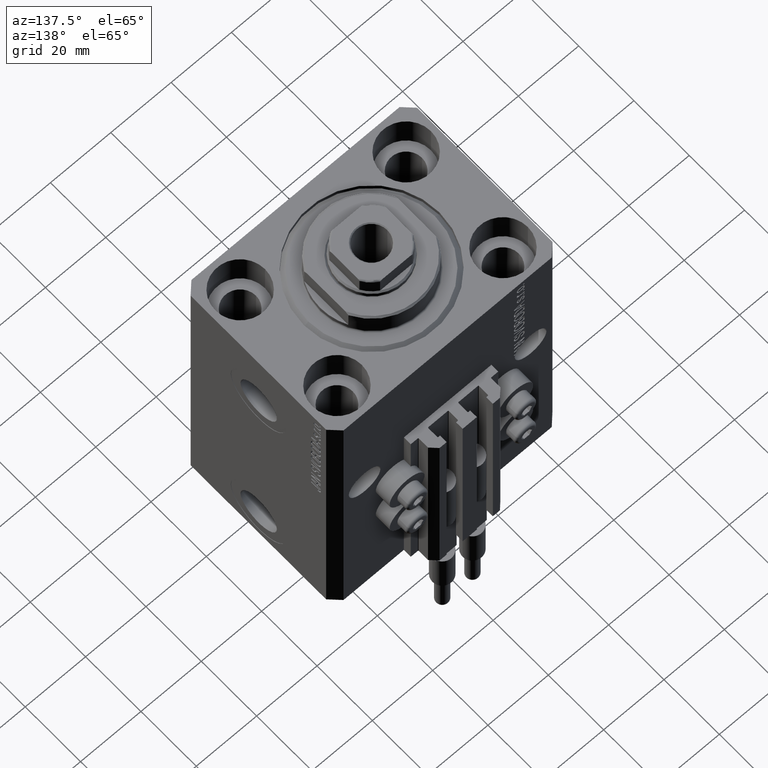
[diagram: clean part render]
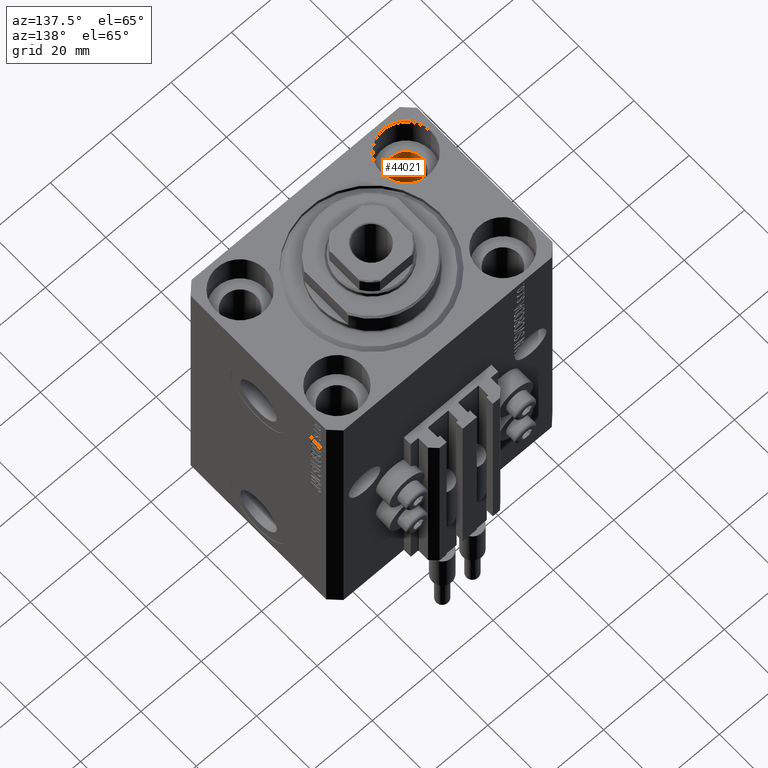
[diagram: same view with one face highlighted and labeled with its STEP entity id]
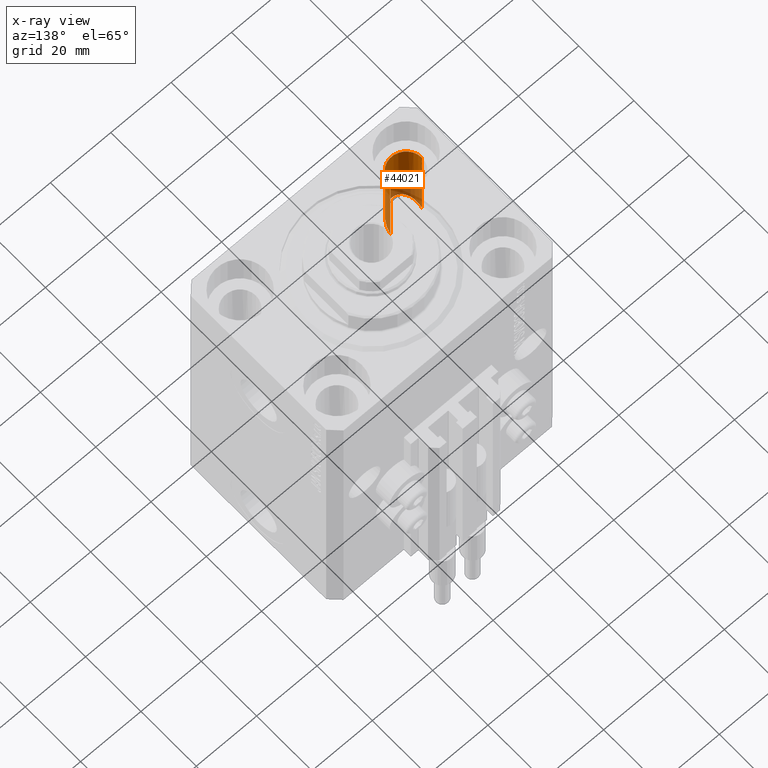
[diagram: x-ray of the same camera — body ghosted, the highlighted face saturated]
A machine part, auxiliary view. The second image highlights one B-rep face of the part: STEP entity #44021.
The next image is the same camera in x-ray: the body ghosted, the highlighted face saturated — about 41% of this face is hidden behind the body in this view.
In plain terms, the highlighted cylindrical surface (edge-blend (fillet) strip) has radius 5.25 mm, axis along (0, 0, 1).
Its self-contained STEP definition (entity closure, byte-faithful):
#345 = CARTESIAN_POINT ( 'NONE',  ( -22.24999999999999645, -28.00000000000000000, -29.50000000000001066 ) ) ;
#384 = ORIENTED_EDGE ( 'NONE', *, *, #18738, .T. ) ;
#1556 = LINE ( 'NONE', #43204, #1621 ) ;
#1621 = VECTOR ( 'NONE', #13477, 1000.000000000000000 ) ;
#7370 = DIRECTION ( 'NONE',  ( -0.000000000000000000, -0.000000000000000000, 1.000000000000000000 ) ) ;
#10785 = FACE_OUTER_BOUND ( 'NONE', #45279, .T. ) ;
#11542 = CARTESIAN_POINT ( 'NONE',  ( -32.74999999999999289, -28.00000000000000000, -29.50000000000001066 ) ) ;
#11973 = DIRECTION ( 'NONE',  ( 0.000000000000000000, 0.000000000000000000, 1.000000000000000000 ) ) ;
#13477 = DIRECTION ( 'NONE',  ( -0.000000000000000000, -0.000000000000000000, 1.000000000000000000 ) ) ;
#13590 = ORIENTED_EDGE ( 'NONE', *, *, #33348, .F. ) ;
#16534 = CARTESIAN_POINT ( 'NONE',  ( -22.25000000000000000, -17.50000000000000000, -40.00000000000000711 ) ) ;
#18738 = EDGE_CURVE ( 'NONE', #20274, #24858, #21075, .T. ) ;
#18826 = DIRECTION ( 'NONE',  ( 1.000000000000000000, 0.000000000000000000, 0.000000000000000000 ) ) ;
#20274 = VERTEX_POINT ( 'NONE', #44883 ) ;
#20327 = EDGE_CURVE ( 'NONE', #24858, #40411, #29519, .T. ) ;
#21075 = LINE ( 'NONE', #47862, #43468 ) ;
#21113 = ORIENTED_EDGE ( 'NONE', *, *, #20327, .T. ) ;
#23800 = VERTEX_POINT ( 'NONE', #16534 ) ;
#24858 = VERTEX_POINT ( 'NONE', #37816 ) ;
#25535 = ORIENTED_EDGE ( 'NONE', *, *, #32264, .T. ) ;
#25652 = CARTESIAN_POINT ( 'NONE',  ( -27.50000000000000355, -17.50000000000000000, -98.00000000000000000 ) ) ;
#26408 = CARTESIAN_POINT ( 'NONE',  ( -32.74999999999999289, -17.50000000000000000, -40.00000000000000711 ) ) ;
#29519 = CIRCLE ( 'NONE', #35741, 5.250000000000000888 ) ;
#29781 = DIRECTION ( 'NONE',  ( 1.000000000000000000, 0.000000000000000000, 0.000000000000000000 ) ) ;
#30249 = CYLINDRICAL_SURFACE ( 'NONE', #40774, 5.250000000000000888 ) ;
#32264 = EDGE_CURVE ( 'NONE', #23800, #20274, #39384, .T. ) ;
#33348 = EDGE_CURVE ( 'NONE', #23800, #40411, #1556, .T. ) ;
#35741 = AXIS2_PLACEMENT_3D ( 'NONE', #45116, #11973, #29781 ) ;
#37816 = CARTESIAN_POINT ( 'NONE',  ( -32.75000000000000000, -17.50000000000000000, -11.00000000000000000 ) ) ;
#39384 =( BOUNDED_CURVE ( )  B_SPLINE_CURVE ( 3, ( #41028, #345, #11542, #26408 ),
 .UNSPECIFIED., .F., .F. ) 
 B_SPLINE_CURVE_WITH_KNOTS ( ( 4, 4 ),
 ( 4.712388980384689674, 7.853981633974482790 ),
 .UNSPECIFIED. ) 
 CURVE ( )  GEOMETRIC_REPRESENTATION_ITEM ( )  RATIONAL_B_SPLINE_CURVE ( ( 1.000000000000000000, 0.3333333333333333703, 0.3333333333333333703, 1.000000000000000000 ) ) 
 REPRESENTATION_ITEM ( '' )  );
#40411 = VERTEX_POINT ( 'NONE', #41340 ) ;
#40774 = AXIS2_PLACEMENT_3D ( 'NONE', #25652, #7370, #18826 ) ;
#41028 = CARTESIAN_POINT ( 'NONE',  ( -22.25000000000000000, -17.50000000000000000, -40.00000000000000711 ) ) ;
#41340 = CARTESIAN_POINT ( 'NONE',  ( -22.25000000000000355, -17.50000000000000000, -11.00000000000000000 ) ) ;
#43204 = CARTESIAN_POINT ( 'NONE',  ( -22.25000000000000355, -17.50000000000000000, -98.00000000000000000 ) ) ;
#43468 = VECTOR ( 'NONE', #43722, 1000.000000000000000 ) ;
#43722 = DIRECTION ( 'NONE',  ( -0.000000000000000000, -0.000000000000000000, 1.000000000000000000 ) ) ;
#44021 = ADVANCED_FACE ( 'NONE', ( #10785 ), #30249, .F. ) ;
#44883 = CARTESIAN_POINT ( 'NONE',  ( -32.74999999999999289, -17.50000000000000000, -40.00000000000000711 ) ) ;
#45116 = CARTESIAN_POINT ( 'NONE',  ( -27.50000000000000355, -17.50000000000000000, -11.00000000000000000 ) ) ;
#45279 = EDGE_LOOP ( 'NONE', ( #25535, #384, #21113, #13590 ) ) ;
#47862 = CARTESIAN_POINT ( 'NONE',  ( -32.75000000000000000, -17.50000000000000000, -98.00000000000000000 ) ) ;